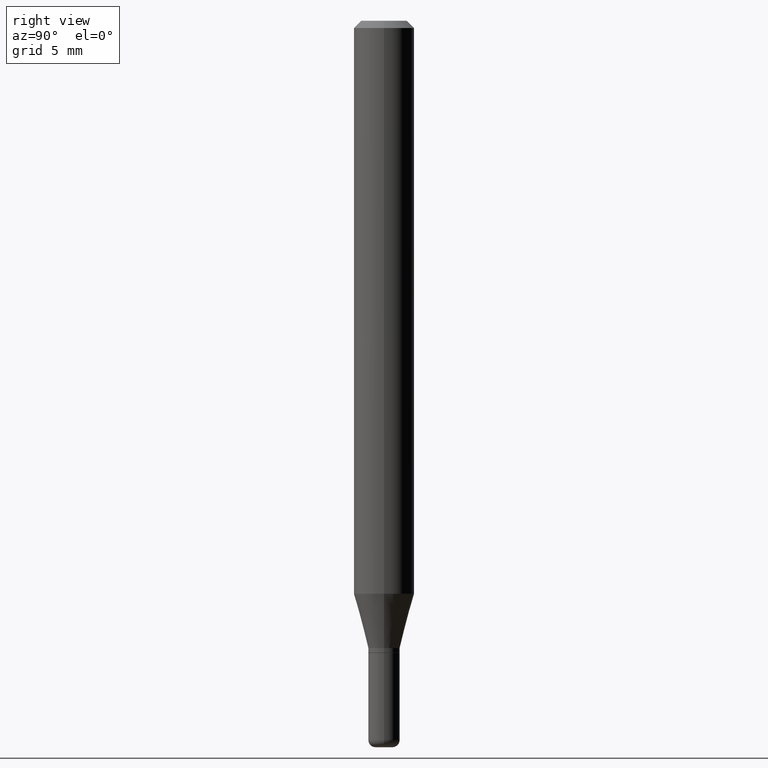
[diagram: clean part render]
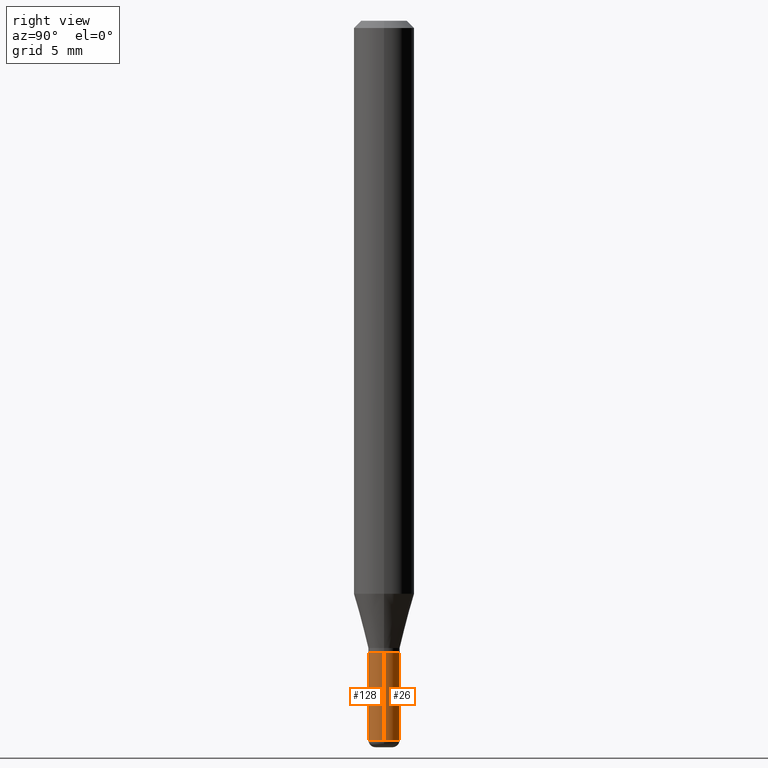
[diagram: same view with one multi-face feature highlighted, each face labeled with its STEP entity id]
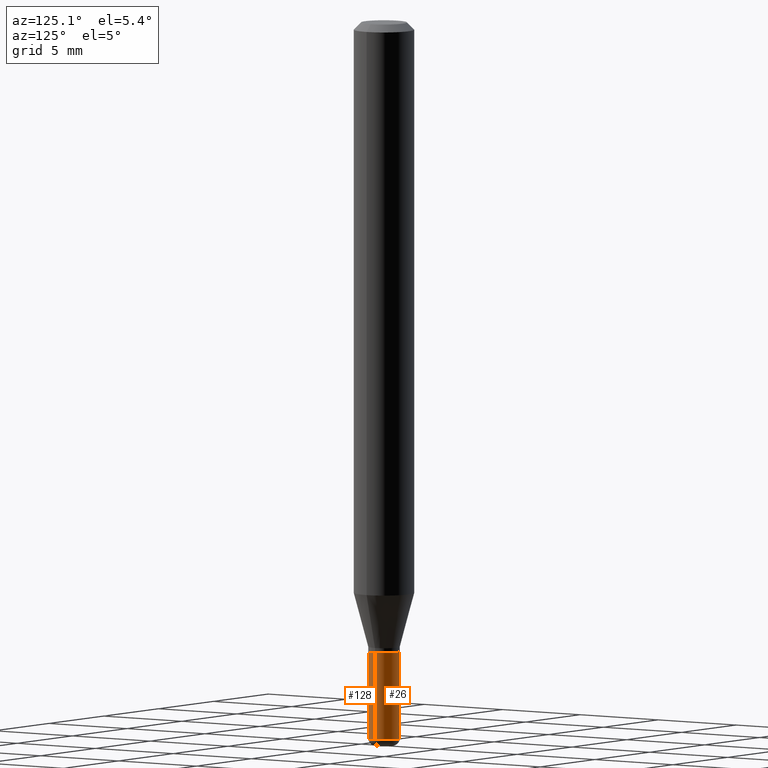
[diagram: same view with one multi-face feature highlighted, each face labeled with its STEP entity id]
A machine part, right view. The highlighted faces form ONE feature: a constant-radius fillet chain: 2 tangent blend faces with common blend radius 0.8255 mm. The faces share edges in the B-rep.
A second angle (auxiliary view) of the same feature is appended — it is thin or edge-on in the first view.
Their STEP definitions:
[1] entity #26 (Cylinder):
#3 = DIRECTION ( 'NONE',  ( -2.445468806185136877E-29, 3.491481338843145188E-15, 1.000000000000000000 ) ) ;
#9 = VERTEX_POINT ( 'NONE', #259 ) ;
#26 = ADVANCED_FACE ( 'NONE', ( #390 ), #395, .T. ) ;
#31 = DIRECTION ( 'NONE',  ( -2.445468806185136597E-29, 3.491481338843145583E-15, 1.000000000000000000 ) ) ;
#32 = DIRECTION ( 'NONE',  ( 1.000000000000000000, -6.982962677686258033E-15, 0.000000000000000000 ) ) ;
#50 = EDGE_CURVE ( 'NONE', #220, #453, #315, .T. ) ;
#62 = ORIENTED_EDGE ( 'NONE', *, *, #515, .T. ) ;
#86 = CARTESIAN_POINT ( 'NONE',  ( 0.03250000000000000111, -4.783329434215109105E-15, -1.305000000000000160 ) ) ;
#112 = DIRECTION ( 'NONE',  ( 1.000000000000000000, -6.982962677686267499E-15, 4.876176775795936353E-29 ) ) ;
#132 = ORIENTED_EDGE ( 'NONE', *, *, #50, .F. ) ;
#151 = CARTESIAN_POINT ( 'NONE',  ( 0.000000000000000000, 0.000000000000000000, 0.000000000000000000 ) ) ;
#154 = CARTESIAN_POINT ( 'NONE',  ( 3.631521177184928138E-29, -5.184849788182071492E-15, -1.485000000000000098 ) ) ;
#156 = DIRECTION ( 'NONE',  ( -2.445468806185136597E-29, 3.491481338843145583E-15, 1.000000000000000000 ) ) ;
#159 = EDGE_CURVE ( 'NONE', #400, #220, #267, .T. ) ;
#169 = EDGE_LOOP ( 'NONE', ( #62, #197, #132, #456 ) ) ;
#197 = ORIENTED_EDGE ( 'NONE', *, *, #208, .T. ) ;
#200 = CIRCLE ( 'NONE', #252, 0.03249999999999998723 ) ;
#208 = EDGE_CURVE ( 'NONE', #9, #453, #238, .T. ) ;
#217 = CARTESIAN_POINT ( 'NONE',  ( 0.03249999999999998723, -5.411796075206874844E-15, -1.485000000000000098 ) ) ;
#220 = VERTEX_POINT ( 'NONE', #86 ) ;
#228 = CARTESIAN_POINT ( 'NONE',  ( 0.03249999999999999417, -2.269462870248036484E-16, 1.584757452133678993E-30 ) ) ;
#238 = LINE ( 'NONE', #399, #388 ) ;
#252 = AXIS2_PLACEMENT_3D ( 'NONE', #154, #156, #513 ) ;
#259 = CARTESIAN_POINT ( 'NONE',  ( -0.03249999999999998723, -4.639690078564155857E-15, -1.485000000000000098 ) ) ;
#267 = LINE ( 'NONE', #228, #305 ) ;
#269 = AXIS2_PLACEMENT_3D ( 'NONE', #435, #431, #32 ) ;
#294 = AXIS2_PLACEMENT_3D ( 'NONE', #151, #31, #112 ) ;
#305 = VECTOR ( 'NONE', #389, 39.37007874015748143 ) ;
#309 = CARTESIAN_POINT ( 'NONE',  ( -0.03250000000000000111, -4.639690078564155857E-15, -1.305000000000000160 ) ) ;
#315 = CIRCLE ( 'NONE', #269, 0.03250000000000000111 ) ;
#388 = VECTOR ( 'NONE', #3, 39.37007874015748143 ) ;
#389 = DIRECTION ( 'NONE',  ( -2.445468806185136877E-29, 3.491481338843145188E-15, 1.000000000000000000 ) ) ;
#390 = FACE_OUTER_BOUND ( 'NONE', #169, .T. ) ;
#395 = CYLINDRICAL_SURFACE ( 'NONE', #294, 0.03249999999999999417 ) ;
#399 = CARTESIAN_POINT ( 'NONE',  ( -0.03249999999999999417, 2.309263891220325190E-16, -1.598653904332844057E-30 ) ) ;
#400 = VERTEX_POINT ( 'NONE', #217 ) ;
#431 = DIRECTION ( 'NONE',  ( -2.445468806185136597E-29, 3.491481338843145583E-15, 1.000000000000000000 ) ) ;
#435 = CARTESIAN_POINT ( 'NONE',  ( 3.191336792071603685E-29, -4.556383147190305752E-15, -1.305000000000000160 ) ) ;
#453 = VERTEX_POINT ( 'NONE', #309 ) ;
#456 = ORIENTED_EDGE ( 'NONE', *, *, #159, .F. ) ;
#513 = DIRECTION ( 'NONE',  ( 1.000000000000000000, -6.982962677686261189E-15, 0.000000000000000000 ) ) ;
#515 = EDGE_CURVE ( 'NONE', #400, #9, #200, .T. ) ;
[2] entity #128 (Cylinder):
#3 = DIRECTION ( 'NONE',  ( -2.445468806185136877E-29, 3.491481338843145188E-15, 1.000000000000000000 ) ) ;
#9 = VERTEX_POINT ( 'NONE', #259 ) ;
#16 = ORIENTED_EDGE ( 'NONE', *, *, #176, .F. ) ;
#60 = CIRCLE ( 'NONE', #243, 0.03249999999999998723 ) ;
#75 = DIRECTION ( 'NONE',  ( -2.445468806185136597E-29, 3.491481338843145583E-15, 1.000000000000000000 ) ) ;
#83 = AXIS2_PLACEMENT_3D ( 'NONE', #319, #75, #466 ) ;
#86 = CARTESIAN_POINT ( 'NONE',  ( 0.03250000000000000111, -4.783329434215109105E-15, -1.305000000000000160 ) ) ;
#122 = DIRECTION ( 'NONE',  ( 1.000000000000000000, -6.982962677686258033E-15, 0.000000000000000000 ) ) ;
#128 = ADVANCED_FACE ( 'NONE', ( #505 ), #359, .T. ) ;
#143 = ORIENTED_EDGE ( 'NONE', *, *, #159, .T. ) ;
#159 = EDGE_CURVE ( 'NONE', #400, #220, #267, .T. ) ;
#176 = EDGE_CURVE ( 'NONE', #453, #220, #284, .T. ) ;
#188 = CARTESIAN_POINT ( 'NONE',  ( 3.631521177184928138E-29, -5.184849788182071492E-15, -1.485000000000000098 ) ) ;
#208 = EDGE_CURVE ( 'NONE', #9, #453, #238, .T. ) ;
#217 = CARTESIAN_POINT ( 'NONE',  ( 0.03249999999999998723, -5.411796075206874844E-15, -1.485000000000000098 ) ) ;
#220 = VERTEX_POINT ( 'NONE', #86 ) ;
#228 = CARTESIAN_POINT ( 'NONE',  ( 0.03249999999999999417, -2.269462870248036484E-16, 1.584757452133678993E-30 ) ) ;
#229 = AXIS2_PLACEMENT_3D ( 'NONE', #326, #321, #122 ) ;
#238 = LINE ( 'NONE', #399, #388 ) ;
#243 = AXIS2_PLACEMENT_3D ( 'NONE', #188, #383, #468 ) ;
#259 = CARTESIAN_POINT ( 'NONE',  ( -0.03249999999999998723, -4.639690078564155857E-15, -1.485000000000000098 ) ) ;
#267 = LINE ( 'NONE', #228, #305 ) ;
#284 = CIRCLE ( 'NONE', #229, 0.03250000000000000111 ) ;
#305 = VECTOR ( 'NONE', #389, 39.37007874015748143 ) ;
#309 = CARTESIAN_POINT ( 'NONE',  ( -0.03250000000000000111, -4.639690078564155857E-15, -1.305000000000000160 ) ) ;
#319 = CARTESIAN_POINT ( 'NONE',  ( 0.000000000000000000, 0.000000000000000000, 0.000000000000000000 ) ) ;
#321 = DIRECTION ( 'NONE',  ( -2.445468806185136597E-29, 3.491481338843145583E-15, 1.000000000000000000 ) ) ;
#326 = CARTESIAN_POINT ( 'NONE',  ( 3.191336792071603685E-29, -4.556383147190305752E-15, -1.305000000000000160 ) ) ;
#359 = CYLINDRICAL_SURFACE ( 'NONE', #83, 0.03249999999999999417 ) ;
#383 = DIRECTION ( 'NONE',  ( -2.445468806185136597E-29, 3.491481338843145583E-15, 1.000000000000000000 ) ) ;
#388 = VECTOR ( 'NONE', #3, 39.37007874015748143 ) ;
#389 = DIRECTION ( 'NONE',  ( -2.445468806185136877E-29, 3.491481338843145188E-15, 1.000000000000000000 ) ) ;
#399 = CARTESIAN_POINT ( 'NONE',  ( -0.03249999999999999417, 2.309263891220325190E-16, -1.598653904332844057E-30 ) ) ;
#400 = VERTEX_POINT ( 'NONE', #217 ) ;
#441 = ORIENTED_EDGE ( 'NONE', *, *, #208, .F. ) ;
#453 = VERTEX_POINT ( 'NONE', #309 ) ;
#466 = DIRECTION ( 'NONE',  ( 1.000000000000000000, -6.982962677686267499E-15, 4.876176775795936353E-29 ) ) ;
#467 = EDGE_CURVE ( 'NONE', #9, #400, #60, .T. ) ;
#468 = DIRECTION ( 'NONE',  ( 1.000000000000000000, -6.982962677686261189E-15, 0.000000000000000000 ) ) ;
#481 = EDGE_LOOP ( 'NONE', ( #441, #503, #143, #16 ) ) ;
#503 = ORIENTED_EDGE ( 'NONE', *, *, #467, .T. ) ;
#505 = FACE_OUTER_BOUND ( 'NONE', #481, .T. ) ;